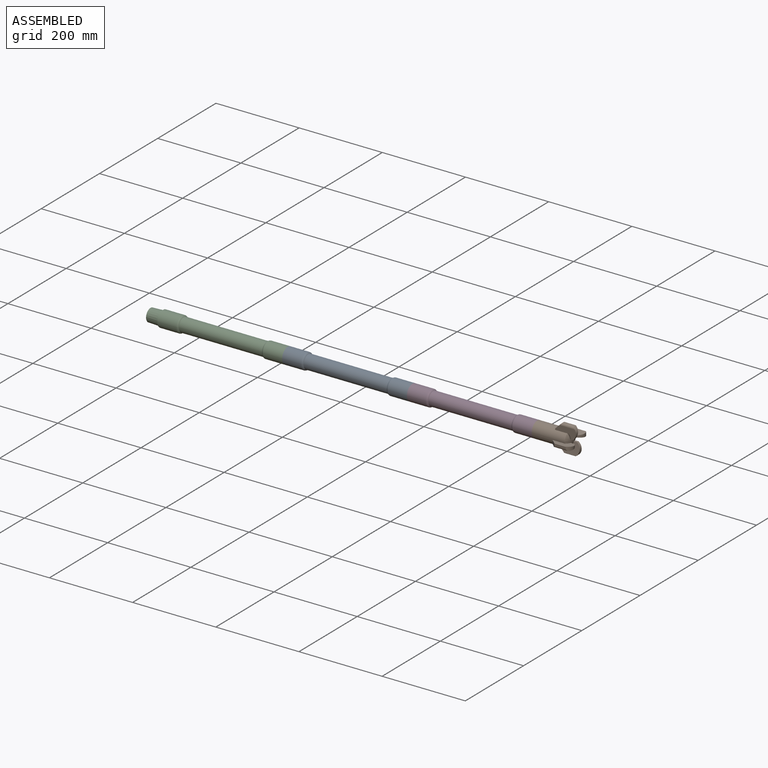
[diagram: assembled view]
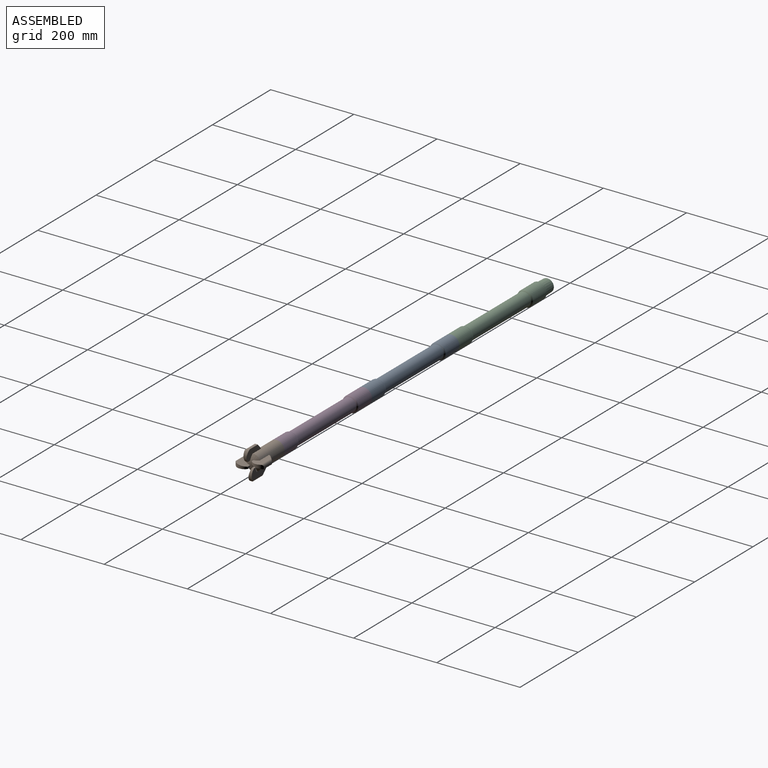
[diagram: assembled view, second angle]
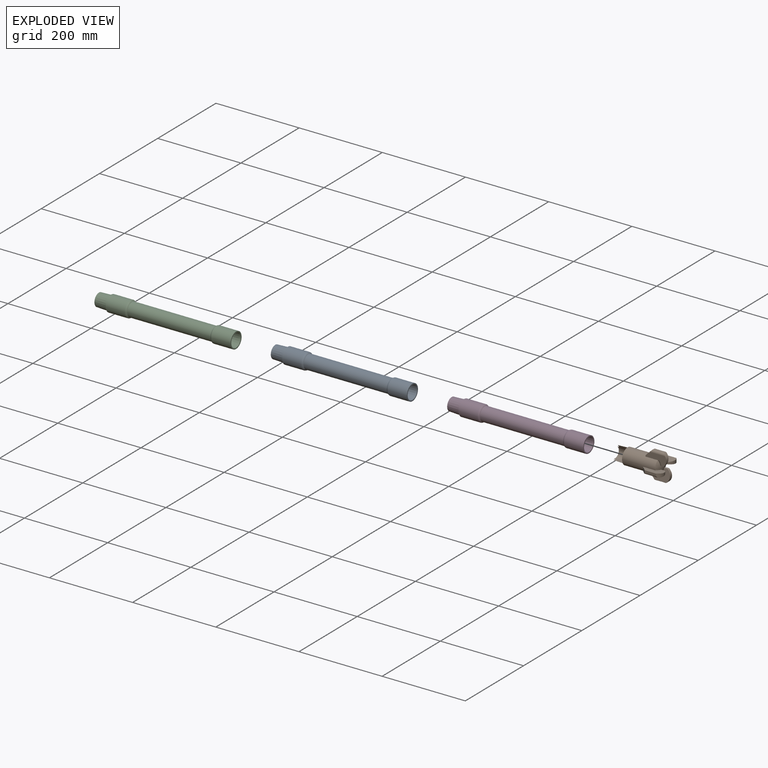
[diagram: exploded view]
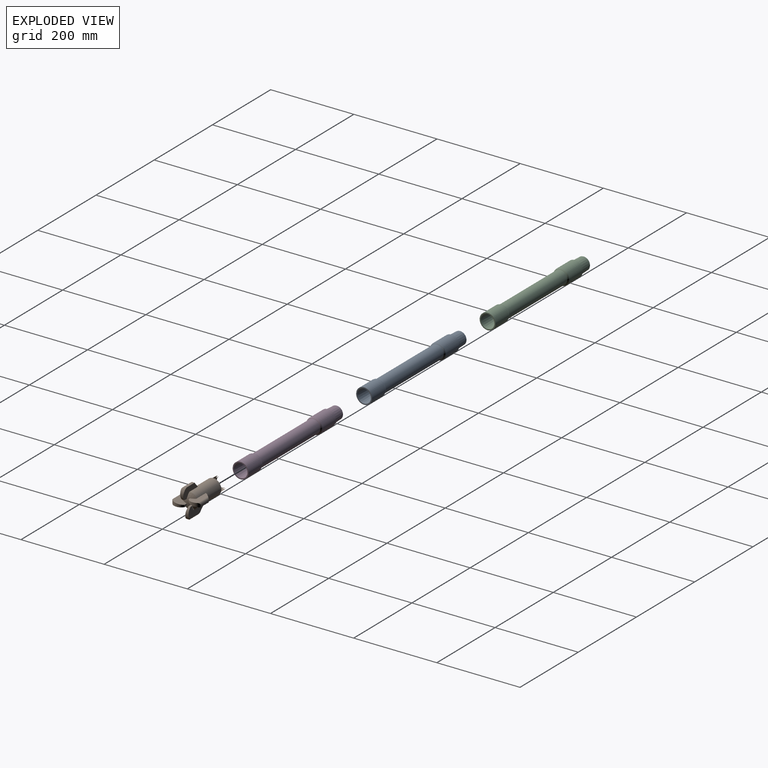
[diagram: exploded view, second angle]
ASSEMBLY  parts=4 mates=3
PART A: 12 faces, bbox 330x41.2x41.2 mm
  f0: cone r=13.97mm half-angle=3.6deg, axis (1,0,0), area 3837.9mm2, adj f1,f9
  f1: plane 38.1x38.1mm, normal (1,0,0), area 283.8mm2, adj f0,f2
  f2: cylinder r=19.05mm len=45.65mm, axis (-1,0,0), area 5463.7mm2, adj f1,f10
  f3: cylinder r=16.51mm len=200mm, axis (-1,0,0), area 20747.1mm2, adj f10,f11
  f4: cylinder r=19.05mm len=45.65mm, axis (-1,0,0), area 5463.7mm2, adj f5,f11
  f5: plane 38.1x38.1mm, normal (-1,0,0), area 283.8mm2, adj f4,f6
  f6: cone r=15.24mm half-angle=2.4deg, axis (1,0,0), area 2995mm2, adj f5,f7
  f7: plane 30.48x30.48mm, normal (-1,0,0), area 223mm2, adj f6,f8
  f8: cylinder r=12.7mm len=290mm, axis (-1,0,0), area 23141mm2, adj f7,f9
  f9: plane 27.94x27.94mm, normal (1,0,0), area 106.4mm2, adj f0,f8
  f10: torus R=14.05mm, axis (-1,0,0), area 603mm2, adj f2,f3
  f11: torus R=14.05mm, axis (1,0,0), area 603mm2, adj f3,f4
PART B: 63 faces, bbox 132.1x70.2x70.2 mm
  f0: plane 8.65x5.23mm, normal (0,0,-1), area 38.4mm2, adj f1,f4,f5,f25,f58
  f1: cylinder r=17.81mm len=29.05mm, axis (0,1,0), area 247.3mm2, adj f0,f3,f4,f5,f6,f7
  f2: plane 15.64x15.64mm, normal (-0.71,0,0.71), area 161.6mm2, adj f3,f4,f5,f6,f7,f62
  f3: plane 27.5x4.42mm, normal (0,0,1), area 121.5mm2, adj f1,f2,f6,f7
  f4: plane 50x24.05mm, normal (0,-1,0), area 701.9mm2, adj f0,f1,f2,f6,f18,f22,f23,f58
  f5: plane 49.89x28.8mm, normal (0,0.99,-0.17), area 812.9mm2, adj f0,f1,f2,f7,f8,f19,f23,f25
  f6: cylinder r=5mm len=37.24mm, axis (1,0,0), area 254.2mm2, adj f1,f2,f3,f4
  f7: cylinder r=0.5mm len=28.86mm, axis (-1,0,0), area 24.5mm2, adj f1,f2,f3,f5
  f8: cylinder r=29.42mm len=0.18mm, axis (0,1,0), area 0mm2, adj f5,f19,f23
  f9: plane 8.65x5.23mm, normal (0,1,0), area 38.4mm2, adj f10,f11,f14,f25,f57
  f10: plane 49.89x28.8mm, normal (0,0.17,0.99), area 812.9mm2, adj f9,f11,f12,f16,f17,f20,f23,f25
  f11: cylinder r=17.81mm len=29.05mm, axis (0,0,1), area 247.3mm2, adj f9,f10,f13,f14,f15,f16
  f12: plane 15.64x15.64mm, normal (-0.71,-0.71,0), area 161.6mm2, adj f10,f13,f14,f15,f16,f61
  f13: plane 27.5x4.42mm, normal (0,-1,0), area 121.5mm2, adj f11,f12,f15,f16
  f14: plane 50x24.05mm, normal (0,0,-1), area 701.9mm2, adj f9,f11,f12,f15,f21,f23,f54,f57
  f15: cylinder r=5mm len=37.24mm, axis (1,0,0), area 254.2mm2, adj f11,f12,f13,f14
  f16: cylinder r=0.5mm len=28.86mm, axis (-1,0,0), area 24.5mm2, adj f10,f11,f12,f13
  f17: cylinder r=29.42mm len=0.18mm, axis (0,0,1), area 0mm2, adj f10,f20,f23
  f18: plane 1.36x0.76mm, normal (-1,0,0), area 0.5mm2, adj f4,f23,f62
  f19: plane 27.27x0.17mm, normal (0,1,0), area 4.7mm2, adj f5,f8,f23,f62
  f20: plane 27.27x0.17mm, normal (0,0,1), area 4.7mm2, adj f10,f17,f23,f61
  f21: plane 1.36x0.76mm, normal (-1,0,0), area 0.5mm2, adj f14,f23,f61
  f22: cylinder r=19.05mm len=3.6mm, axis (-1,0,0), area 0.8mm2, adj f4,f25,f58
  f23: cylinder r=19.05mm len=79.48mm, axis (-1,0,0), area 8580mm2, adj f4,f5,f8,f10,f14,f17,f18,f19
  f24: revolved ~25.4x25.4mm, area 533.9mm2, adj f29
  f25: revolved ~38.1x38.1mm, area 983mm2, adj f0,f5,f9,f10,f22,f23,f30,f31
  f26: plane 38.1x38.1mm, normal (-1,0,0), area 283.8mm2, adj f23,f27
  f27: cone r=15.24mm half-angle=2.4deg, axis (1,0,0), area 2995mm2, adj f26,f28
  f28: plane 30.48x30.48mm, normal (-1,0,0), area 223mm2, adj f27,f29
  f29: cylinder r=12.7mm len=107.35mm, axis (-1,0,0), area 8566.3mm2, adj f24,f28
  f30: plane 8.65x5.23mm, normal (0,-1,0), area 38.4mm2, adj f25,f32,f33,f36,f56
  f31: cylinder r=19.05mm len=3.6mm, axis (-1,0,0), area 0.8mm2, adj f25,f36,f56
  f32: plane 49.89x28.8mm, normal (0,-0.17,-0.99), area 812.9mm2, adj f23,f25,f30,f33,f34,f38,f39,f41
  f33: cylinder r=17.81mm len=29.05mm, axis (0,0,-1), area 247.3mm2, adj f30,f32,f35,f36,f37,f38
  f34: plane 15.64x15.64mm, normal (-0.71,0.71,0), area 161.6mm2, adj f32,f35,f36,f37,f38,f60
  f35: plane 27.5x4.42mm, normal (0,1,0), area 121.5mm2, adj f33,f34,f37,f38
  f36: plane 50x24.05mm, normal (0,0,1), area 701.9mm2, adj f23,f30,f31,f33,f34,f37,f40,f56
  f37: cylinder r=5mm len=37.24mm, axis (1,0,0), area 254.2mm2, adj f33,f34,f35,f36
  f38: cylinder r=0.5mm len=28.86mm, axis (-1,0,0), area 24.5mm2, adj f32,f33,f34,f35
  f39: cylinder r=29.42mm len=0.18mm, axis (0,0,-1), area 0mm2, adj f23,f32,f41
  f40: plane 1.36x0.76mm, normal (-1,0,0), area 0.5mm2, adj f23,f36,f60
  f41: plane 27.27x0.17mm, normal (0,0,-1), area 4.7mm2, adj f23,f32,f39,f60
  f42: plane 8.65x5.23mm, normal (0,0,1), area 38.4mm2, adj f25,f44,f47,f48,f55
  f43: cylinder r=19.05mm len=3.6mm, axis (-1,0,0), area 0.8mm2, adj f25,f47,f55
  f44: cylinder r=17.81mm len=29.05mm, axis (0,-1,0), area 247.3mm2, adj f42,f46,f47,f48,f49,f50
  f45: plane 15.64x15.64mm, normal (-0.71,0,-0.71), area 161.6mm2, adj f46,f47,f48,f49,f50,f59
  f46: plane 27.5x4.42mm, normal (0,0,-1), area 121.5mm2, adj f44,f45,f49,f50
  f47: plane 50x24.05mm, normal (0,1,0), area 701.9mm2, adj f23,f42,f43,f44,f45,f49,f52,f55
  f48: plane 49.89x28.8mm, normal (0,-0.99,0.17), area 812.9mm2, adj f23,f25,f42,f44,f45,f50,f51,f53
  f49: cylinder r=5mm len=37.24mm, axis (1,0,0), area 254.2mm2, adj f44,f45,f46,f47
  f50: cylinder r=0.5mm len=28.86mm, axis (-1,0,0), area 24.5mm2, adj f44,f45,f46,f48
  f51: cylinder r=29.42mm len=0.18mm, axis (0,-1,0), area 0mm2, adj f23,f48,f53
  f52: plane 1.36x0.76mm, normal (-1,0,0), area 0.5mm2, adj f23,f47,f59
  f53: plane 27.27x0.17mm, normal (0,-1,0), area 4.7mm2, adj f23,f48,f51,f59
  f54: cylinder r=19.05mm len=3.6mm, axis (-1,0,0), area 0.8mm2, adj f14,f25,f57
  f55: bspline ~14.02x9.01mm, area 53.7mm2, adj f25,f42,f43,f47
  f56: bspline ~14.02x9.01mm, area 53.7mm2, adj f25,f30,f31,f36
  f57: bspline ~14.02x9.01mm, area 53.7mm2, adj f9,f14,f25,f54
  f58: bspline ~14.02x9.01mm, area 53.7mm2, adj f0,f4,f22,f25
  f59: cylinder r=5mm len=7.68mm, axis (0,1,0), area 22.4mm2, adj f23,f45,f47,f48,f52,f53
  f60: cylinder r=5mm len=7.68mm, axis (0,0,1), area 22.4mm2, adj f23,f32,f34,f36,f40,f41
  f61: cylinder r=5mm len=7.68mm, axis (0,0,-1), area 22.4mm2, adj f10,f12,f14,f20,f21,f23
  f62: cylinder r=5mm len=7.68mm, axis (0,-1,0), area 22.4mm2, adj f2,f4,f5,f18,f19,f23
PART C: same geometry as A
PART D: same geometry as A
PLACE A t=(221.21,30.8,-28.46)mm
PLACE B t=(901.21,30.8,-9.41)mm
PLACE C t=(-78.79,30.8,-28.46)mm
PLACE D t=(521.21,30.8,-28.46)mm
MATE planar D.f0 <-> A.f0  axis (-1,0,0) through (551.21,30.8,-28.46)mm
MATE planar A.f0 <-> C.f0  axis (-1,0,0) through (251.21,30.8,-28.46)mm
MATE planar B.f22 <-> D.f0  axis (-1,0,0) through (851.21,30.8,-28.46)mm
